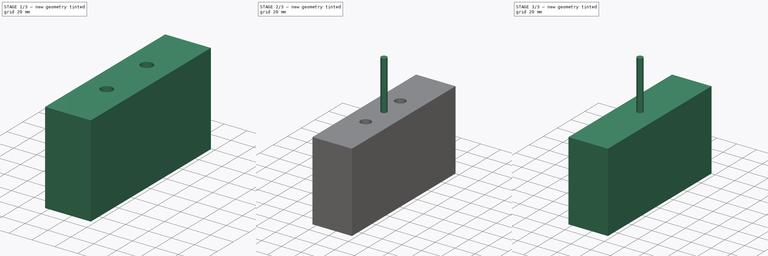
[diagram: build sequence overview — one tinted view per stage of 3, left to right]
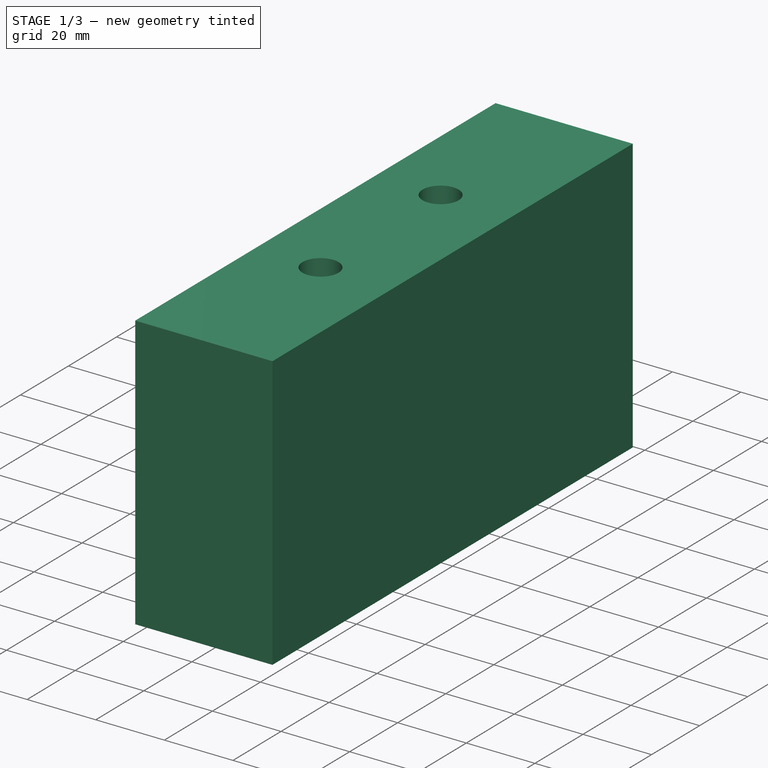
[diagram: stage 1 of 3 — iso view after this stage's code; geometry added in this stage tinted green]
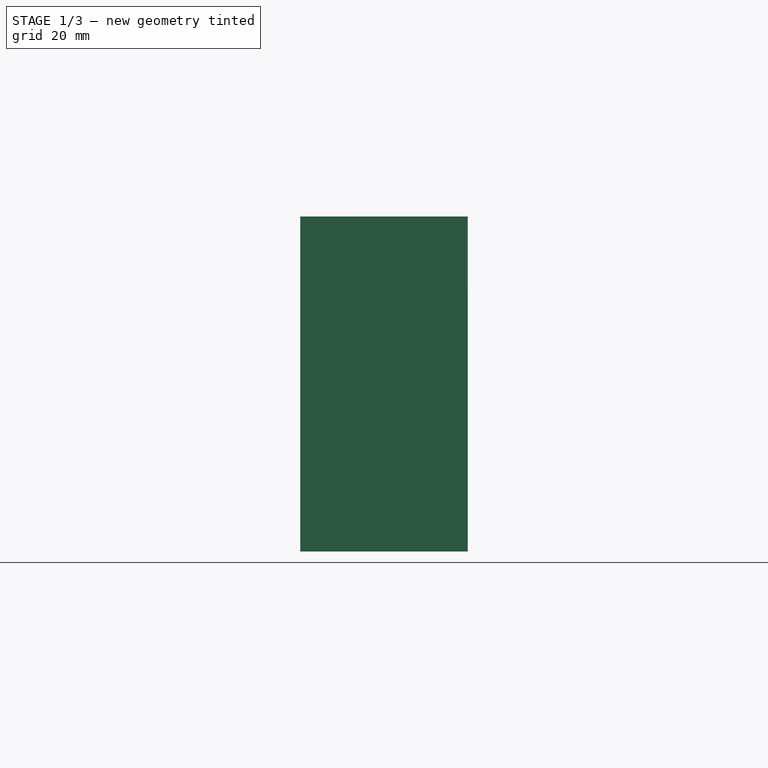
[diagram: stage 1 of 3 — front view after this stage's code; geometry added in this stage tinted green]
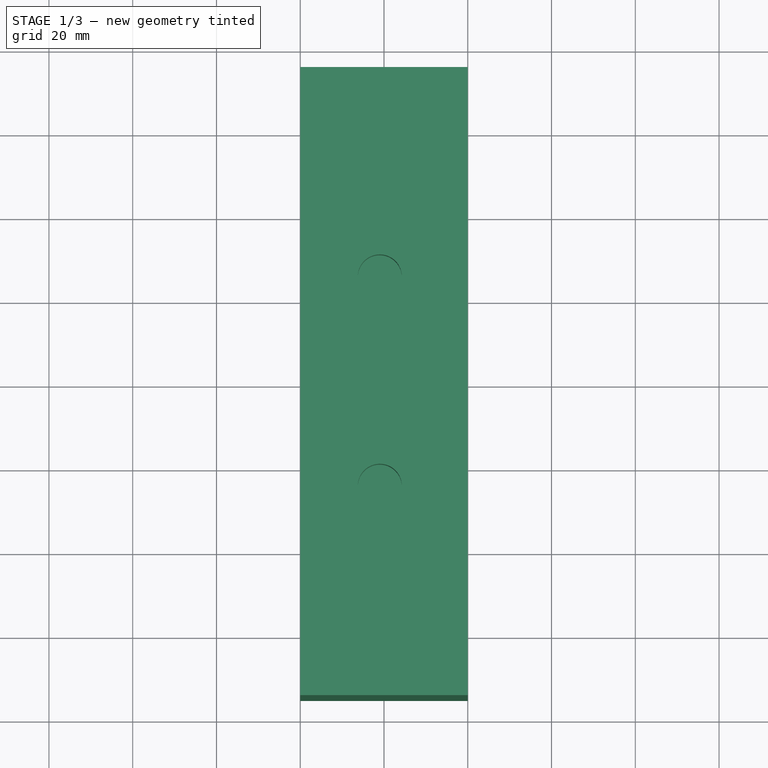
[diagram: stage 1 of 3 — top view after this stage's code; geometry added in this stage tinted green]
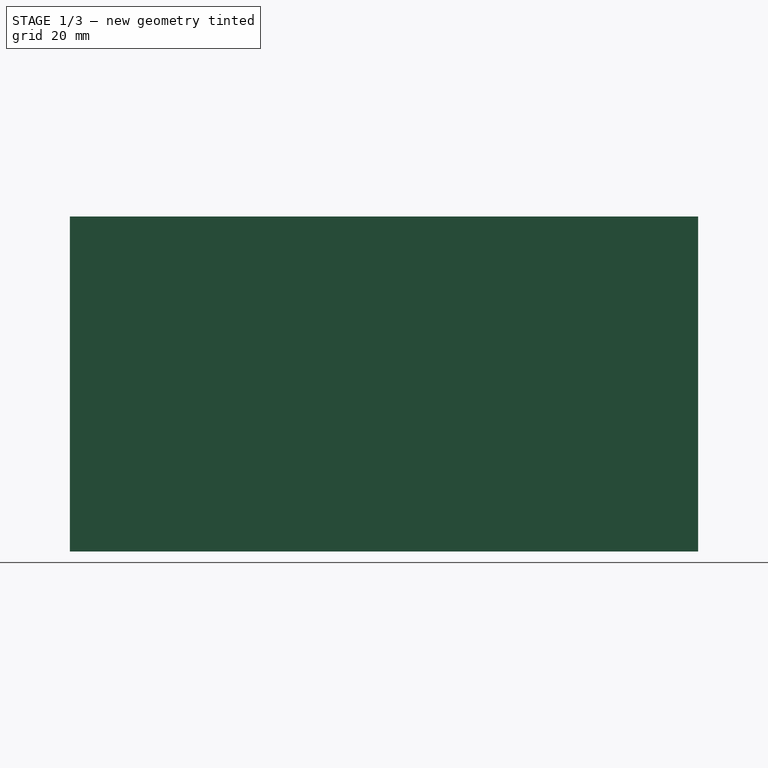
[diagram: stage 1 of 3 — right view after this stage's code; geometry added in this stage tinted green]
FCSTD DOCUMENT  (FreeCAD 0.21R33668 +26 (Git))
Label: Profile_80_40_8mm
License: All rights reserved
LicenseURL: https://en.wikipedia.org/wiki/All_rights_reserved
objects: Path::FeaturePython×6, Part::FeaturePython×3, App::DocumentObjectGroup×3, Sketcher::SketchObject×2, PartDesign::SubShapeBinder×2, PartDesign::Pocket×2, PartDesign::Pad×1, Spreadsheet::Sheet×1, App::FeaturePython×1, PartDesign::Body×1
note: 16 computed .brp shape members not serialized (recipe doc carries the construction recipe); baked Part::Feature solids carry a one-line shape summary decoded from their .brp

FEATURE [Sketcher::SketchObject] Sketch  label="Sketch_Profile"
  FullyConstrained = true
  MapMode = 5
  Placement = pos=(0,0,0) rot=(1,0,0;1.5708rad)
  Support = -> [XZ_Plane]
  expr: Constraints[8] = Spreadsheet.Width
  expr: Constraints[9] = Spreadsheet.Height
  sketch-geometry (4):
    g0: LineSegment StartX=-20 StartY=0 StartZ=0 EndX=20 EndY=0 EndZ=0
    g1: LineSegment StartX=20 StartY=0 StartZ=0 EndX=20 EndY=-80 EndZ=0
    g2: LineSegment StartX=20 StartY=-80 StartZ=0 EndX=-20 EndY=-80 EndZ=0
    g3: LineSegment StartX=-20 StartY=-80 StartZ=0 EndX=-20 EndY=0 EndZ=0
  constraints (11):
    c: Coincident(g0,g1)
    c: Coincident(g1,g2)
    c: Coincident(g2,g3)
    c: Coincident(g3,g0)
    c: Horizontal(g0)
    c: Horizontal(g2)
    c: Vertical(g1)
    c: Vertical(g3)
    c: DistanceX(g0,g0) = 40
    c: DistanceY(g3,g3) = 80
    c: Symmetric(g0,g0,g-1)
FEATURE [PartDesign::Pad] Pad  label="Profile"
  Direction = (0,-1,2e-16)
  Length = 150
  Length2 = 10
  Midplane = true
  Placement = pos=(0,0,0) rot=(1,0,0;1.5708rad)
  Profile = -> Sketch
  ReferenceAxis = -> Sketch [N_Axis]
  Type = 0
FEATURE [Path::FeaturePython] _mm_Endmill  label="6mm Endmill001"  # Path/CAM operation (typed FeaturePython)
  HorizFeed = 6.66667
  HorizRapid = 6.66667
  SpindleDir = 0
  SpindleSpeed = 0
  Tool = -> ToolBit001
  ToolNumber = 2
  VertFeed = 3.33333
  VertRapid = 3.33333
  expr: HorizRapid = SetupSheet.HorizRapid
  expr: VertRapid = SetupSheet.VertRapid
FEATURE [App::DocumentObjectGroup] Tools
  Group = -> [_mm_Endmill]
FEATURE [Path::FeaturePython] Adaptive001  # Path/CAM operation (typed FeaturePython)
  Active = false
  ClearanceHeight = 5
  CoolantMode = 0
  CycleTime = 00:00:01
  ExtensionCorners = true
  ExtensionLengthDefault = 3
  FinalDepth = 1.67e-14
  FinishDepth = 0
  FinishingProfile = true
  ForceInsideOut = false
  HelixAngle = 5
  HelixConeAngle = 0
  HelixDiameterLimit = 2
  KeepToolDownRatio = 3
  LiftDistance = 0
  OpFinalDepth = 1.67e-14
  OpStartDepth = 6
  OpStockZMax = 1.67e-14
  OpStockZMin = -80
  OpToolDiameter = 6
  OperationType = 0
  SafeHeight = 3
  Side = 1
  StartDepth = -12.5
  StepDown = 6
  StepOver = 10
  StockToLeave = 0
  StopProcessing = false
  Stopped = false
  Tolerance = 0.1
  ToolController = -> _mm_Endmill
  UseHelixArcs = false
  UseOutline = false
  expr: ClearanceHeight = OpStockZMax + SetupSheet.ClearanceHeightOffset
  expr: ExtensionLengthDefault = OpToolDiameter / 2
  expr: FinalDepth = OpFinalDepth
  expr: SafeHeight = OpStockZMax + SetupSheet.SafeHeightOffset
  expr: StartDepth = -Spreadsheet.Slot_Height
  expr: StepDown = OpToolDiameter
FEATURE [PartDesign::SubShapeBinder] Binder001  label="Binder_Hole"
  BindCopyOnChange = 0
  BindMode = 0
  ClaimChildren = false
  Context = -> Body [Binder001.]
  Fuse = false
  MakeFace = true
  OffsetFill = false
  OffsetIntersection = false
  OffsetJoinType = 0
  OffsetOpenResult = false
  PartialLoad = false
  Relative = true
  Support = -> [Sketch001[Edge2,Edge1]]
  _Version = 2
FEATURE [Sketcher::SketchObject] Sketch001  label="Sketch_Hole_6mm"
  FullyConstrained = true
  MapMode = 5
  Placement = pos=(0,0,0) rot=(0,0,1;3.14159rad)
  Support = -> [Pad]
  sketch-geometry (4):
    g0: Circle CenterX=1 CenterY=25 CenterZ=0 NormalX=0 NormalY=0 NormalZ=1 AngleXU=0 Radius=3
    g1: Circle CenterX=1 CenterY=-25 CenterZ=0 NormalX=0 NormalY=0 NormalZ=1 AngleXU=0 Radius=3
    g2: Circle CenterX=1 CenterY=25 CenterZ=0 NormalX=0 NormalY=0 NormalZ=1 AngleXU=0 Radius=5.25
    g3: Circle CenterX=1 CenterY=-25 CenterZ=0 NormalX=0 NormalY=0 NormalZ=1 AngleXU=0 Radius=5.25
  constraints (9):
    c: Coincident(g2,g0)
    c: Coincident(g3,g1)
    c: Equal(g2,g3)
    c: Diameter(g2) = 10.5
    c: Equal(g0,g1)
    c: Diameter(g0) = 6
    c: Symmetric(g0,g1,g-1)
    c: DistanceX(g-1,g0) = 1
    c: DistanceY(g1,g0) = 50
FEATURE [PartDesign::SubShapeBinder] Binder  label="Binder_Conterbore"
  BindCopyOnChange = 0
  BindMode = 0
  ClaimChildren = false
  Context = -> Body [Binder.]
  Fuse = false
  MakeFace = true
  OffsetFill = false
  OffsetIntersection = false
  OffsetJoinType = 0
  OffsetOpenResult = false
  PartialLoad = false
  Relative = true
  Support = -> [Sketch001[Edge4,Edge3]]
  _Version = 2
FEATURE [PartDesign::Pocket] Pocket
  BaseFeature = -> Pad
  Direction = (0,-2e-16,-1)
  Length = 12.5
  Length2 = 5
  Placement = pos=(0,0,0) rot=(1,0,0;1.5708rad)
  Profile = -> Binder
  Type = 0
  expr: Length = Spreadsheet.Slot_Height
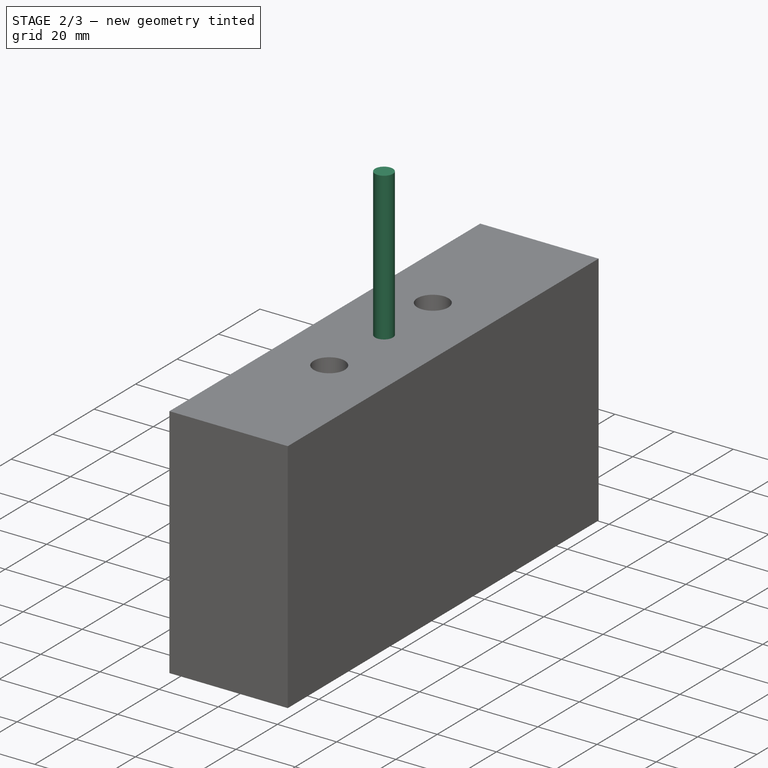
[diagram: stage 2 of 3 — iso view after this stage's code; geometry added in this stage tinted green]
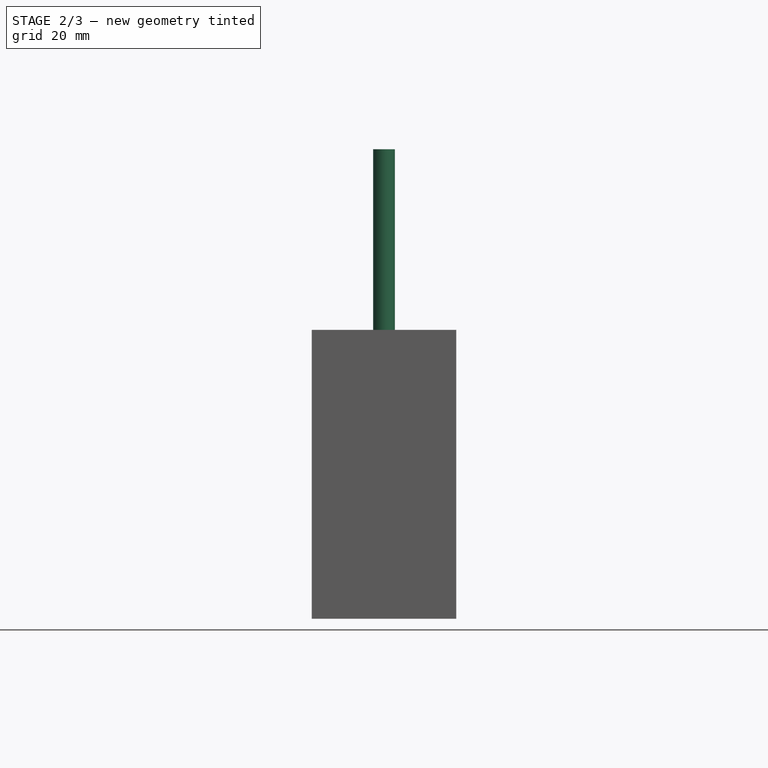
[diagram: stage 2 of 3 — front view after this stage's code; geometry added in this stage tinted green]
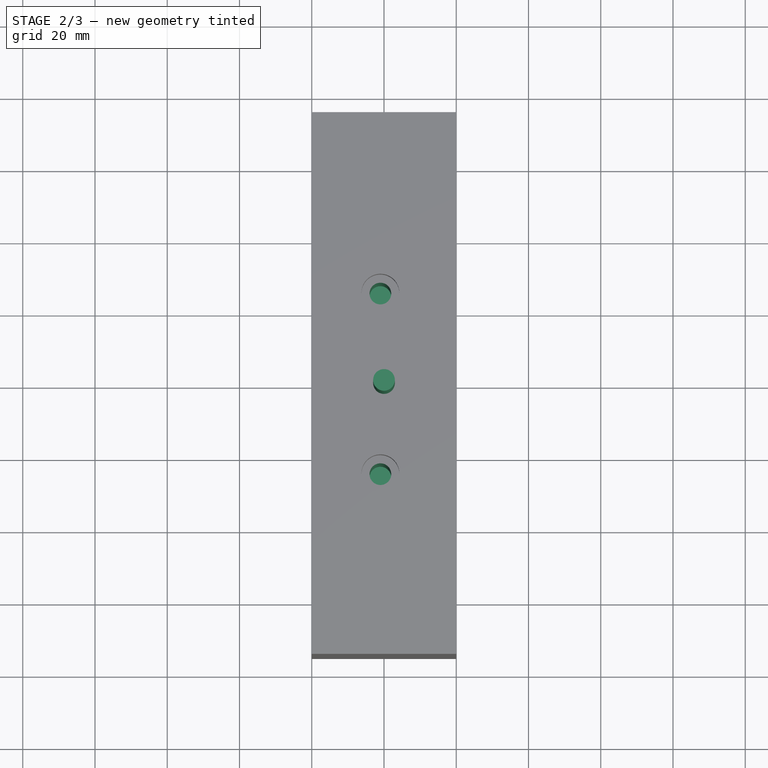
[diagram: stage 2 of 3 — top view after this stage's code; geometry added in this stage tinted green]
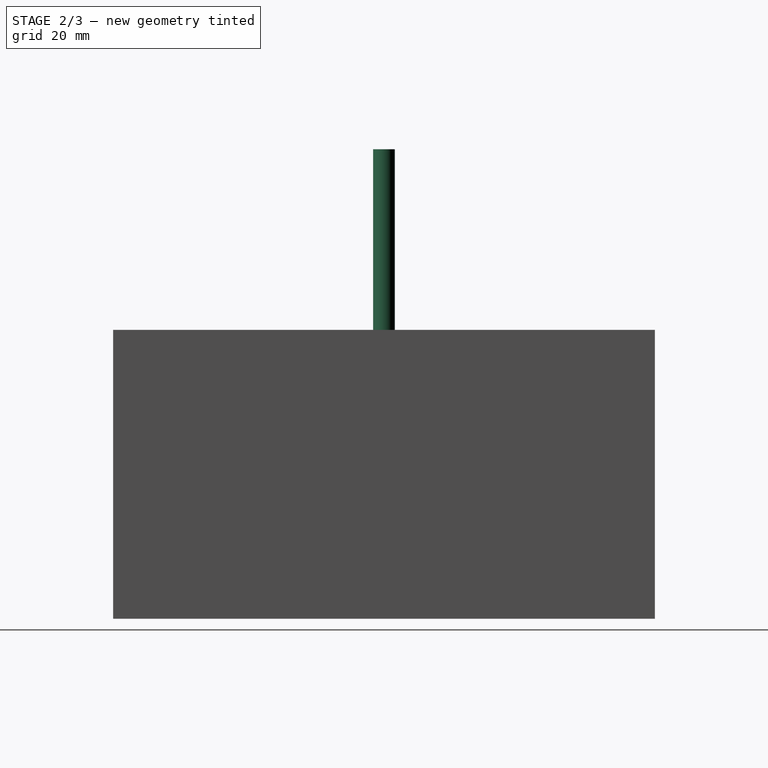
[diagram: stage 2 of 3 — right view after this stage's code; geometry added in this stage tinted green]
FEATURE [Spreadsheet::Sheet] Spreadsheet
  cells = A3='Height; B3(Height)=80; A4='Width; B4(Width)=40; A5='Slot_Height; B5(Slot_Height)=12.5
FEATURE [App::FeaturePython] SetupSheet  # Path/CAM operation (typed FeaturePython)
  ClearanceHeightExpression = OpStockZMax+SetupSheet.ClearanceHeightOffset
  ClearanceHeightOffset = 5
  CoolantMode = 0
  CoolantModes = None | Flood | Mist
  FinalDepthExpression = OpFinalDepth
  HorizRapid = 6.66667
  SafeHeightExpression = OpStockZMax+SetupSheet.SafeHeightOffset
  SafeHeightOffset = 3
  StartDepthExpression = OpStartDepth
  StepDownExpression = OpToolDiameter
  VertRapid = 3.33333
FEATURE [Part::FeaturePython] ToolBit001  label="6mm Endmill"  # Path/CAM toolbit (typed FeaturePython)
  BitPropertyNames = Chipload | CuttingEdgeHeight | Diameter | Flutes | Length | Material | ShankDiameter | SpindleDirection
  BitShape = C:/Program Files/FreeCAD 0.21/Mod/Path/Tools\Shape\endmill.fcstd
  Chipload = 0
  CuttingEdgeHeight = 30
  Diameter = 6
  File = C:/Program Files/FreeCAD 0.21/Mod/Path/Tools/Bit/6mm_Endmill.fctb
  Flutes = 0
  Length = 50
  Material = 0
  ShankDiameter = 6
  ShapeName = endmill
  SpindleDirection = 0
FEATURE [PartDesign::Pocket] Pocket001
  BaseFeature = -> Pocket
  Direction = (0,-2e-16,-1)
  Length = 67.5
  Length2 = 5
  Placement = pos=(0,0,0) rot=(1,0,0;1.5708rad)
  Profile = -> Binder001
  Type = 0
  expr: Length = Spreadsheet.Height - Spreadsheet.Slot_Height
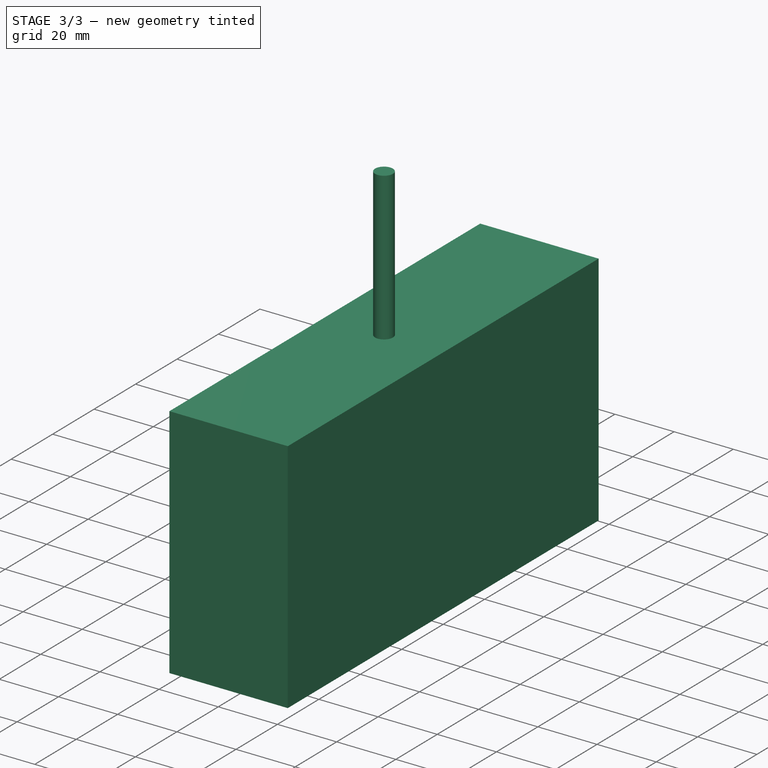
[diagram: stage 3 of 3 — iso view after this stage's code; geometry added in this stage tinted green]
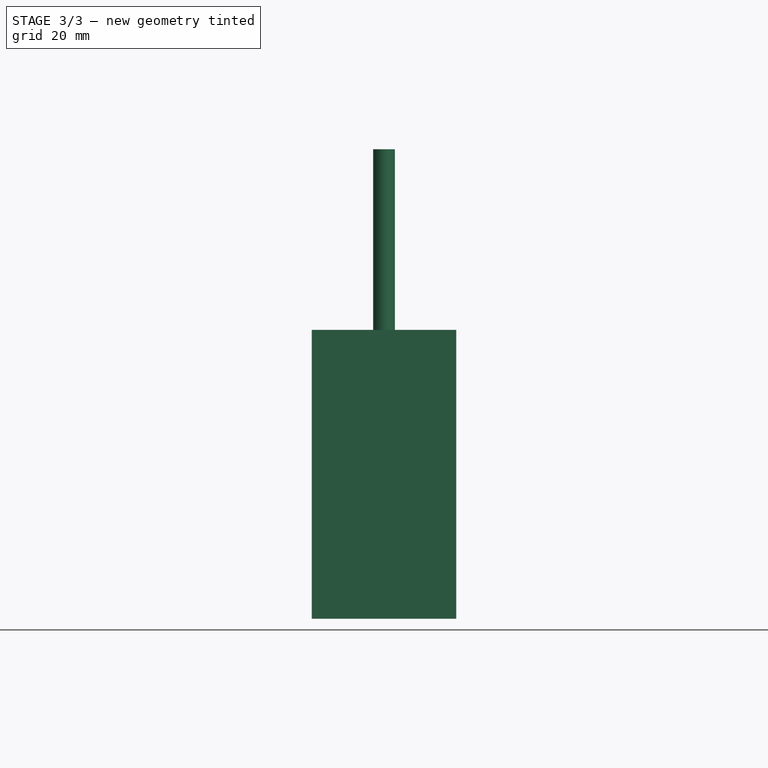
[diagram: stage 3 of 3 — front view after this stage's code; geometry added in this stage tinted green]
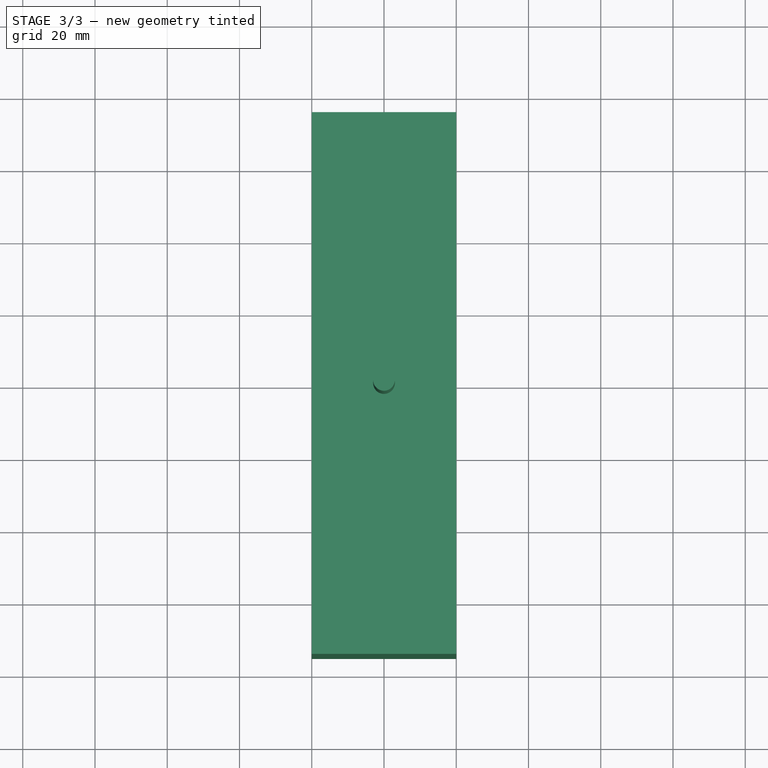
[diagram: stage 3 of 3 — top view after this stage's code; geometry added in this stage tinted green]
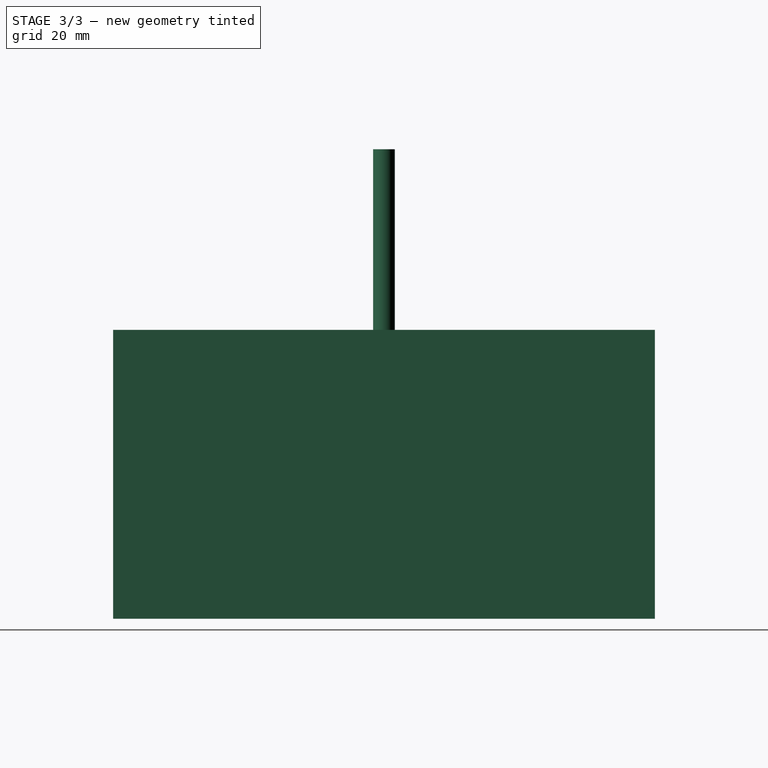
[diagram: stage 3 of 3 — right view after this stage's code; geometry added in this stage tinted green]
FEATURE [PartDesign::Body] Body  label="Profile_with_Hole_8mm"
  Group = -> [Sketch,Pad,Sketch001,Binder001,Binder,Pocket,Pocket001]
  Origin = -> Origin
  Tip = -> Pocket001
FEATURE [Part::FeaturePython] Clone  label="Model-Profile_with_Hole_6mm"  # Draft clone (typed FeaturePython)
  AttacherType = Attacher::AttachEngine3D
  Fuse = false
  Objects = -> [Body]
  PathResource = Model
  Scale = (1,1,1)
FEATURE [App::DocumentObjectGroup] Model
  Group = -> [Clone]
FEATURE [Path::FeaturePython] Adaptive  # Path/CAM operation (typed FeaturePython)
  Active = true
  Base = -> [Clone]
  ClearanceHeight = 5
  CoolantMode = 0
  CycleTime = 00:04:50
  ExtensionCorners = true
  ExtensionLengthDefault = 3
  FinalDepth = -12.5
  FinishDepth = 0
  FinishingProfile = true
  ForceInsideOut = false
  HelixAngle = 5
  HelixConeAngle = 0
  HelixDiameterLimit = 2
  KeepToolDownRatio = 3
  LiftDistance = 0
  OpFinalDepth = -12.5
  OpStartDepth = 1.67e-14
  OpStockZMax = 1.67e-14
  OpStockZMin = -80
  OpToolDiameter = 6
  OperationType = 0
  SafeHeight = 3
  Side = 1
  StartDepth = 0
  StepDown = 6
  StepOver = 10
  StockToLeave = 0
  StopProcessing = false
  Stopped = false
  Tolerance = 0.1
  ToolController = -> _mm_Endmill
  UseHelixArcs = false
  UseOutline = false
  expr: ClearanceHeight = OpStockZMax + SetupSheet.ClearanceHeightOffset
  expr: ExtensionLengthDefault = OpToolDiameter / 2
  expr: FinalDepth = OpFinalDepth
  expr: SafeHeight = OpStockZMax + SetupSheet.SafeHeightOffset
  expr: StepDown = OpToolDiameter
FEATURE [Path::FeaturePython] Drilling  label="Drilling_6mm_Up"  # Path/CAM operation (typed FeaturePython)
  Active = true
  AddTipLength = false
  Base = -> [Clone]
  ClearanceHeight = 5
  CoolantMode = 0
  CycleTime = 00:00:22
  Disabled = Clone.Face6 | Clone.Face7
  DwellEnabled = false
  DwellTime = 1
  ExtraOffset = 0
  FinalDepth = -28.5
  KeepToolDown = false
  OpFinalDepth = -12.5
  OpStartDepth = 1.67e-14
  OpStockZMax = 1.67e-14
  OpStockZMin = -80
  OpToolDiameter = 6
  PeckDepth = 0.3
  PeckEnabled = true
  RetractHeight = -9.5
  RetractMode = 0
  SafeHeight = 3
  StartDepth = -12.5
  ToolController = -> _mm_Endmill
  chipBreakEnabled = false
  expr: ClearanceHeight = OpStockZMax + SetupSheet.ClearanceHeightOffset
  expr: FinalDepth = -Spreadsheet.Height / 2 + Spreadsheet.Slot_Height - 1
  expr: PeckDepth = OpToolDiameter * 0.05
  expr: RetractHeight = StartDepth + SetupSheet.SafeHeightOffset
  expr: SafeHeight = OpStockZMax + SetupSheet.SafeHeightOffset
  expr: StartDepth = -Spreadsheet.Slot_Height
FEATURE [Part::FeaturePython] Clone029  label="Stock-Profile"  # Draft clone (typed FeaturePython)
  AttacherType = Attacher::AttachEngine3D
  Fuse = false
  Objects = -> [Pad]
  PathResource = Stock
  Placement = pos=(0,0,0) rot=(1,0,0;1.5708rad)
  Scale = (1,1,1)
  StockType = Unknown
FEATURE [Path::FeaturePython] Drilling001  label="Drilling_6mm_Down"  # Path/CAM operation (typed FeaturePython)
  Active = true
  AddTipLength = false
  Base = -> [Clone]
  ClearanceHeight = 5
  CoolantMode = 0
  CycleTime = 00:00:34
  Disabled = Clone.Face6 | Clone.Face7
  DwellEnabled = false
  DwellTime = 1
  ExtraOffset = 0
  FinalDepth = -67.5
  KeepToolDown = false
  OpFinalDepth = -12.5
  OpStartDepth = 1.67e-14
  OpStockZMax = 1.67e-14
  OpStockZMin = -80
  OpToolDiameter = 6
  PeckDepth = 0.3
  PeckEnabled = true
  RetractHeight = -49.5
  RetractMode = 0
  SafeHeight = 3
  StartDepth = -52.5
  ToolController = -> _mm_Endmill
  chipBreakEnabled = false
  expr: ClearanceHeight = OpStockZMax + SetupSheet.ClearanceHeightOffset
  expr: FinalDepth = -Spreadsheet.Height + Spreadsheet.Slot_Height
  expr: PeckDepth = OpToolDiameter * 0.05
  expr: RetractHeight = StartDepth + SetupSheet.SafeHeightOffset
  expr: SafeHeight = OpStockZMax + SetupSheet.SafeHeightOffset
  expr: StartDepth = -Spreadsheet.Height / 2 - Spreadsheet.Slot_Height
FEATURE [App::DocumentObjectGroup] Operations
  Group = -> [Adaptive,Adaptive001,Drilling,Drilling001]
FEATURE [Path::FeaturePython] Job  # Path/CAM operation (typed FeaturePython)
  CycleTime = 00:05:46
  Fixtures = G54
  GeometryTolerance = 0.01
  JobType = 0
  LastPostProcessDate = 2023-11-04 15:13:40.094810
  LastPostProcessOutput = <userpath>\Desktop\CNC\FC_CNC_Template\Profile_80_40_6mm_.nc
  Model = -> Model
  Operations = -> Operations
  OrderOutputBy = 0
  PostProcessor = 10
  PostProcessorArgs = --bcnc --no-translate_drill
  PostProcessorOutputFile = <userpath>/Desktop/CNC/FC_CNC_Template/Profile_80_40_6mm_.nc
  SetupSheet = -> SetupSheet
  SplitOutput = false
  Stock = -> Clone029
  Tools = -> Tools
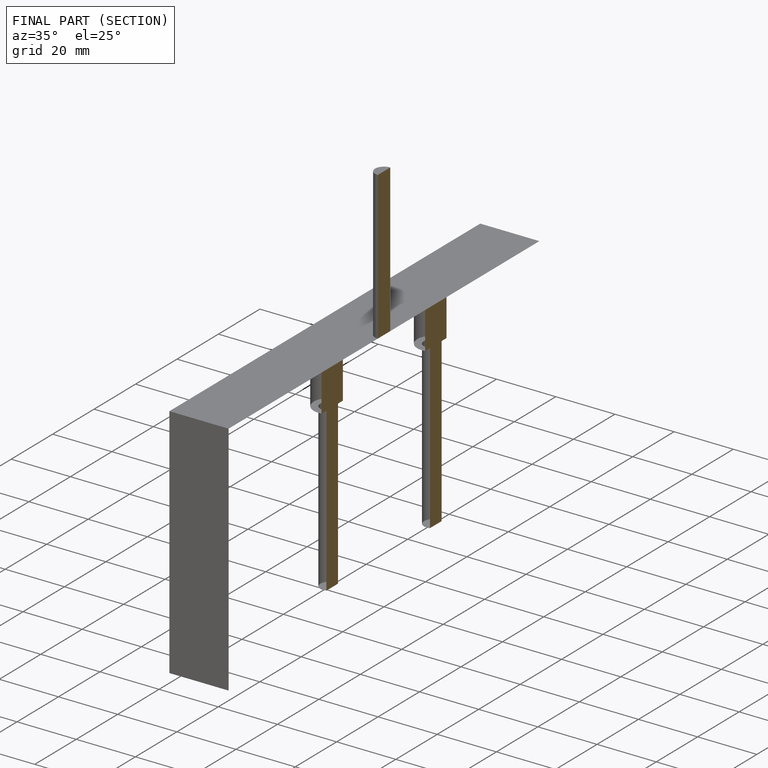
[diagram: finished part — half-section view (interior)]
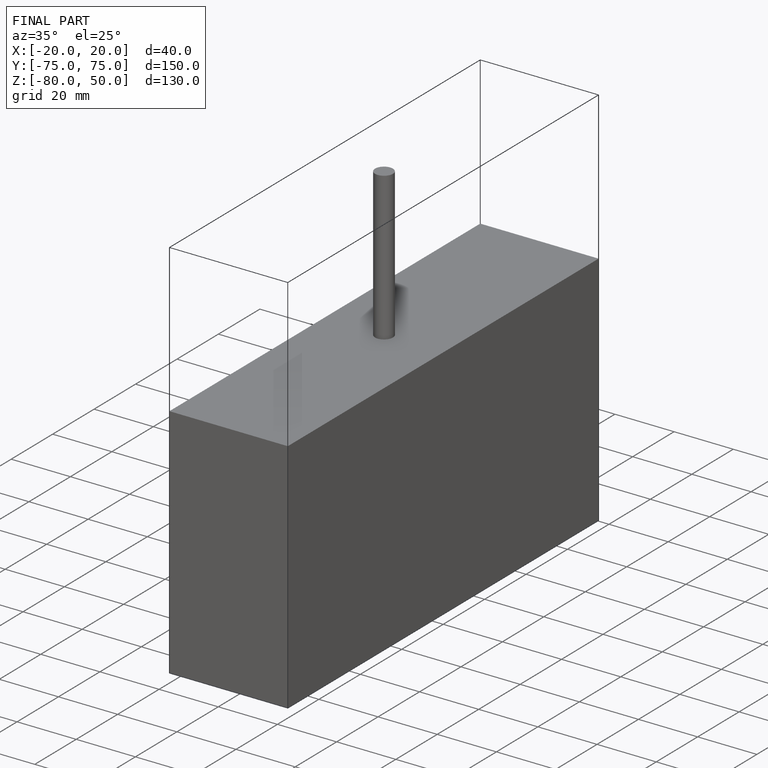
[diagram: finished part — iso view with bounding-box wireframe]
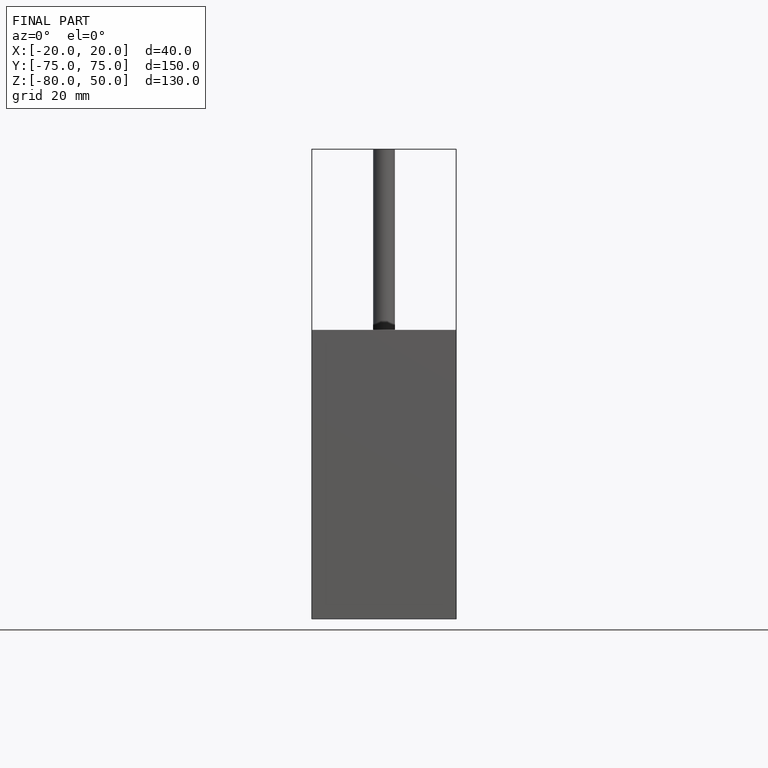
[diagram: finished part — front view with bounding-box wireframe]
